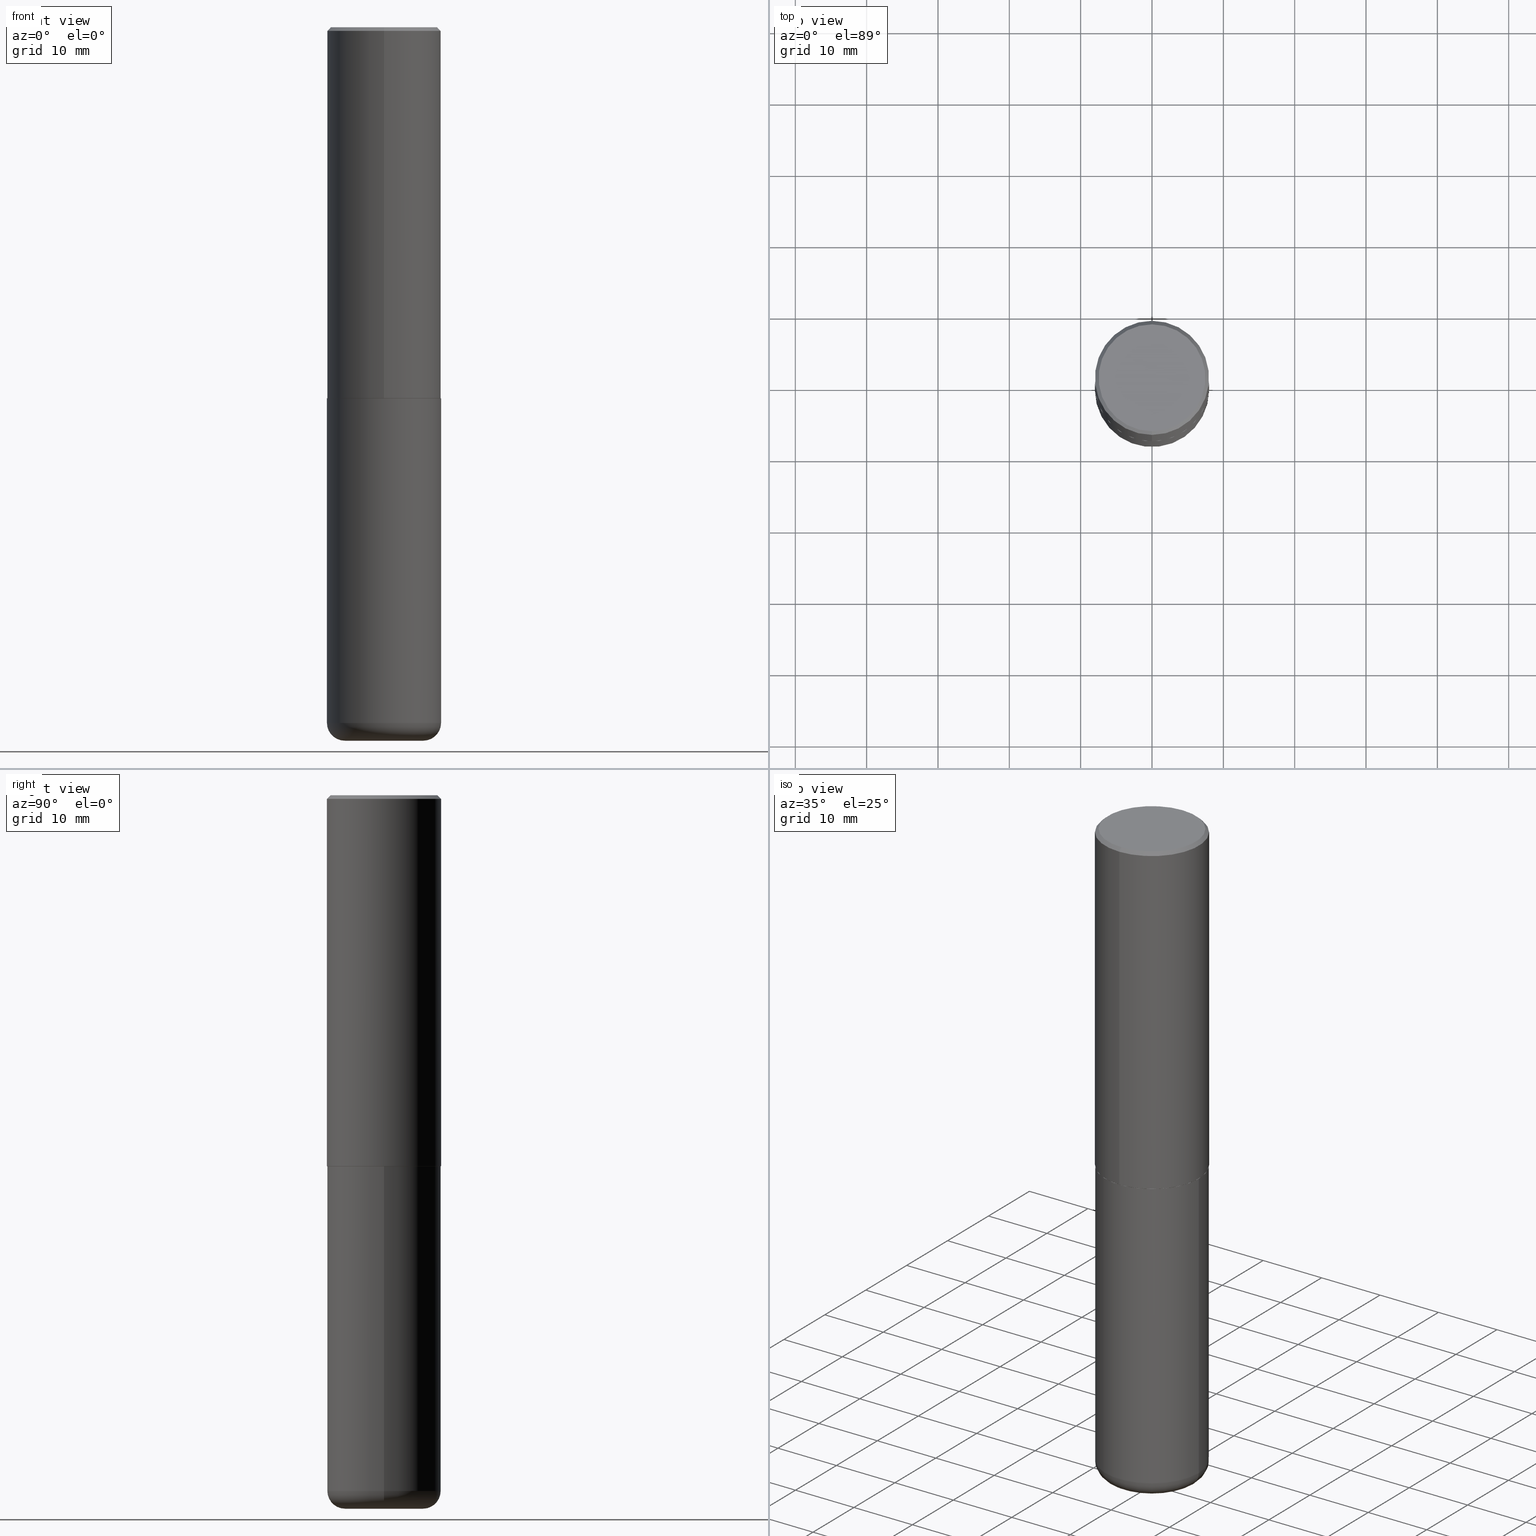
[diagram: canonical four-view strip — front | top / right | iso, engineering-drawing reading convention]
A machine part, canonical four-view strip (front | top / right | iso — engineering-drawing reading convention). The complete STEP part file that produces these views, byte-faithful:
ISO-10303-21;
HEADER;
FILE_DESCRIPTION (( 'STEP AP203' ),
    '1' );
FILE_NAME ('47573.STEP',
    '2024-03-06T13:08:48',
    ( '' ),
    ( '' ),
    'SwSTEP 2.0',
    'SolidWorks 2023',
    '' );
FILE_SCHEMA (( 'CONFIG_CONTROL_DESIGN' ));
ENDSEC;

DATA;
#1 = MECHANICAL_CONTEXT ( 'NONE', #303, 'mechanical' ) ;
#2 = EDGE_LOOP ( 'NONE', ( #238, #58, #114, #188 ) ) ;
#3 = AXIS2_PLACEMENT_3D ( 'NONE', #110, #141, #201 ) ;
#4 = AXIS2_PLACEMENT_3D ( 'NONE', #179, #240, #337 ) ;
#5 = APPLICATION_PROTOCOL_DEFINITION ( 'international standard', 'config_control_design', 1994, #124 ) ;
#6 = ORIENTED_EDGE ( 'NONE', *, *, #410, .F. ) ;
#7 = EDGE_LOOP ( 'NONE', ( #287, #76, #6, #310 ) ) ;
#8 = DIRECTION ( 'NONE',  ( 7.105427357601001859E-15, 1.000000000000000000, -3.491481338843145583E-15 ) ) ;
#9 = EDGE_CURVE ( 'NONE', #42, #95, #373, .T. ) ;
#10 = ORIENTED_EDGE ( 'NONE', *, *, #57, .F. ) ;
#11 = FACE_OUTER_BOUND ( 'NONE', #223, .T. ) ;
#12 = CIRCLE ( 'NONE', #306, 0.3139500000000000068 ) ;
#13 = ORIENTED_EDGE ( 'NONE', *, *, #249, .F. ) ;
#14 = CARTESIAN_POINT ( 'NONE',  ( 2.237854346276462412E-15, 0.3149499999999931799, -2.046200000000001129 ) ) ;
#15 = DIRECTION ( 'NONE',  ( -6.982962677686266711E-15, -1.000000000000000000, 3.480615376543096919E-15 ) ) ;
#16 = DIRECTION ( 'NONE',  ( 2.446965979212638438E-29, -3.489337301853966019E-15, -1.000000000000000000 ) ) ;
#17 = CARTESIAN_POINT ( 'NONE',  ( 5.009428752644114609E-29, -7.143371324355440401E-15, -2.047200000000000131 ) ) ;
#18 = AXIS2_PLACEMENT_3D ( 'NONE', #160, #116, #409 ) ;
#19 = DIRECTION ( 'NONE',  ( 1.000000000000000000, -6.982962677686266711E-15, 4.876176775795936353E-29 ) ) ;
#20 = DIRECTION ( 'NONE',  ( -2.445468806185136877E-29, 3.491481338843145188E-15, 1.000000000000000000 ) ) ;
#21 = DIRECTION ( 'NONE',  ( -6.982962677686266711E-15, -1.000000000000000000, 3.480615376543096919E-15 ) ) ;
#22 = EDGE_CURVE ( 'NONE', #218, #193, #12, .T. ) ;
#23 = PLANE ( 'NONE',  #307 ) ;
#24 = MANIFOLD_SOLID_BREP ( 'Body-Move/Copy2[2]', #106 ) ;
#25 = ORIENTED_EDGE ( 'NONE', *, *, #22, .F. ) ;
#26 = VERTEX_POINT ( 'NONE', #369 ) ;
#27 = ORIENTED_EDGE ( 'NONE', *, *, #152, .T. ) ;
#28 = AXIS2_PLACEMENT_3D ( 'NONE', #139, #172, #390 ) ;
#29 = EDGE_CURVE ( 'NONE', #202, #278, #131, .T. ) ;
#30 = DIRECTION ( 'NONE',  ( -6.982962677686264344E-15, -1.000000000000000000, 3.483117034309589160E-15 ) ) ;
#31 = ADVANCED_FACE ( 'NONE', ( #183 ), #308, .T. ) ;
#32 = PERSON_AND_ORGANIZATION ( #147, #123 ) ;
#33 = CARTESIAN_POINT ( 'NONE',  ( 9.627810689950881427E-29, -1.374596203102546184E-14, -3.936999999999999389 ) ) ;
#34 = CALENDAR_DATE ( 2024, 6, 3 ) ;
#35 = PERSON_AND_ORGANIZATION ( #147, #123 ) ;
#36 = AXIS2_PLACEMENT_3D ( 'NONE', #393, #242, #328 ) ;
#37 = CONICAL_SURFACE ( 'NONE', #211, 0.3139500000000000068, 0.7853981633975849475 ) ;
#38 = ADVANCED_FACE ( 'NONE', ( #120 ), #69, .T. ) ;
#39 = ORIENTED_EDGE ( 'NONE', *, *, #410, .T. ) ;
#40 = DIRECTION ( 'NONE',  ( -2.445468806185136877E-29, 3.491481338843145188E-15, 1.000000000000000000 ) ) ;
#41 = AXIS2_PLACEMENT_3D ( 'NONE', #125, #375, #19 ) ;
#42 = VERTEX_POINT ( 'NONE', #257 ) ;
#43 = LOCAL_TIME ( 8, 8, 48.00000000000000000, #318 ) ;
#44 = EDGE_LOOP ( 'NONE', ( #387, #284, #191, #398 ) ) ;
#45 = PERSON_AND_ORGANIZATION ( #147, #123 ) ;
#46 = DIRECTION ( 'NONE',  ( 2.438088387897960049E-29, -3.491481338843145188E-15, -1.000000000000000000 ) ) ;
#47 = UNCERTAINTY_MEASURE_WITH_UNIT (LENGTH_MEASURE( 1.000000000000000082E-05 ), #133, 'distance_accuracy_value', 'NONE');
#48 = APPROVAL_DATE_TIME ( #81, #234 ) ;
#49 = CARTESIAN_POINT ( 'NONE',  ( 4.893931958425293692E-31, -6.978674603707955407E-17, -0.02000000000000006981 ) ) ;
#50 = AXIS2_PLACEMENT_3D ( 'NONE', #145, #270, #105 ) ;
#51 = FACE_OUTER_BOUND ( 'NONE', #128, .T. ) ;
#52 = ORIENTED_EDGE ( 'NONE', *, *, #100, .T. ) ;
#53 = DIRECTION ( 'NONE',  ( 1.000000000000000000, -6.982962677686264344E-15, 0.000000000000000000 ) ) ;
#54 = DIRECTION ( 'NONE',  ( -2.446965979212638438E-29, 3.489337301853966019E-15, 1.000000000000000000 ) ) ;
#55 =( NAMED_UNIT ( * ) PLANE_ANGLE_UNIT ( ) SI_UNIT ( $, .RADIAN. ) );
#56 = AXIS2_PLACEMENT_3D ( 'NONE', #250, #340, #255 ) ;
#57 = EDGE_CURVE ( 'NONE', #227, #222, #252, .T. ) ;
#58 = ORIENTED_EDGE ( 'NONE', *, *, #281, .T. ) ;
#59 = CARTESIAN_POINT ( 'NONE',  ( -2.160713844398144151E-15, -0.3149500000000002298, -0.01999999999999896999 ) ) ;
#60 = ORIENTED_EDGE ( 'NONE', *, *, #361, .T. ) ;
#61 = DIRECTION ( 'NONE',  ( -2.446965979212638438E-29, 3.489337301853966019E-15, 1.000000000000000000 ) ) ;
#62 = AXIS2_PLACEMENT_3D ( 'NONE', #49, #16, #148 ) ;
#63 = CC_DESIGN_SECURITY_CLASSIFICATION ( #261, ( #198 ) ) ;
#64 = LINE ( 'NONE', #59, #194 ) ;
#65 = CC_DESIGN_PERSON_AND_ORGANIZATION_ASSIGNMENT ( #136, #228, ( #261 ) ) ;
#66 = APPROVAL_STATUS ( 'not_yet_approved' ) ;
#67 = CALENDAR_DATE ( 2024, 6, 3 ) ;
#68 = LENGTH_MEASURE_WITH_UNIT ( LENGTH_MEASURE( 0.02539999999999999897 ), #180 );
#69 = CONICAL_SURFACE ( 'NONE', #112, 0.3149500000000001743, 0.7853981633974467247 ) ;
#70 =( GEOMETRIC_REPRESENTATION_CONTEXT ( 3 ) GLOBAL_UNCERTAINTY_ASSIGNED_CONTEXT ( ( #47 ) ) GLOBAL_UNIT_ASSIGNED_CONTEXT ( ( #133, #55, #265 ) ) REPRESENTATION_CONTEXT ( 'NONE', 'WORKASPACE' ) );
#71 = PRODUCT_DEFINITION ( 'UNKNOWN', '', #198, #143 ) ;
#72 = DIRECTION ( 'NONE',  ( -6.982962677686265922E-15, -1.000000000000000000, 3.489337301853966019E-15 ) ) ;
#73 = DATE_AND_TIME ( #67, #78 ) ;
#74 = ORIENTED_EDGE ( 'NONE', *, *, #315, .T. ) ;
#75 = APPROVAL_STATUS ( 'not_yet_approved' ) ;
#76 = ORIENTED_EDGE ( 'NONE', *, *, #381, .T. ) ;
#77 = LINE ( 'NONE', #178, #98 ) ;
#78 = LOCAL_TIME ( 8, 8, 48.00000000000000000, #356 ) ;
#79 = CARTESIAN_POINT ( 'NONE',  ( 5.009428752644114609E-29, -7.143371324355440401E-15, -2.047200000000000131 ) ) ;
#80 = ORIENTED_EDGE ( 'NONE', *, *, #109, .T. ) ;
#81 = DATE_AND_TIME ( #301, #283 ) ;
#82 = CARTESIAN_POINT ( 'NONE',  ( 2.234301632597685968E-15, 0.3139499999999928459, -2.047200000000001463 ) ) ;
#83 = CARTESIAN_POINT ( 'NONE',  ( 5.009428752644114609E-29, -7.143371324355440401E-15, -2.047200000000000131 ) ) ;
#84 = VERTEX_POINT ( 'NONE', #134 ) ;
#85 = CARTESIAN_POINT ( 'NONE',  ( -0.2165500000000000203, -1.186371997299480179E-14, -3.838600000000000012 ) ) ;
#86 = APPROVAL ( #66, 'UNSPECIFIED' ) ;
#87 = TOROIDAL_SURFACE ( 'NONE', #236, 0.2165500000000000203, 0.09839999999999984870 ) ;
#88 = VECTOR ( 'NONE', #40, 39.37007874015748143 ) ;
#89 = DIRECTION ( 'NONE',  ( -6.982962677686266711E-15, -1.000000000000000000, 3.480615376543096919E-15 ) ) ;
#90 = DIRECTION ( 'NONE',  ( -2.446965979212638438E-29, 3.489337301853966019E-15, 1.000000000000000000 ) ) ;
#91 = DIRECTION ( 'NONE',  ( 5.024295867788748699E-15, 0.7071067811866466046, 0.7071067811864484298 ) ) ;
#92 = CIRCLE ( 'NONE', #3, 0.09839999999999986258 ) ;
#93 = ORIENTED_EDGE ( 'NONE', *, *, #29, .T. ) ;
#94 = CARTESIAN_POINT ( 'NONE',  ( 5.006363740022212801E-29, -7.147760596879689780E-15, -2.047200000000000575 ) ) ;
#95 = VERTEX_POINT ( 'NONE', #353 ) ;
#96 = FACE_OUTER_BOUND ( 'NONE', #345, .T. ) ;
#97 = ADVANCED_FACE ( 'NONE', ( #358 ), #357, .T. ) ;
#98 = VECTOR ( 'NONE', #206, 39.37007874015748143 ) ;
#99 = CONICAL_SURFACE ( 'NONE', #142, 0.3139500000000000068, 0.7853981633975849475 ) ;
#100 = EDGE_CURVE ( 'NONE', #174, #26, #295, .T. ) ;
#101 = ORIENTED_EDGE ( 'NONE', *, *, #220, .F. ) ;
#102 = ORIENTED_EDGE ( 'NONE', *, *, #29, .F. ) ;
#103 = PERSON_AND_ORGANIZATION_ROLE ( 'design_owner' ) ;
#104 = CC_DESIGN_DATE_AND_TIME_ASSIGNMENT ( #73, #288, ( #261 ) ) ;
#105 = DIRECTION ( 'NONE',  ( 1.000000000000000000, -6.982962677686266711E-15, 0.000000000000000000 ) ) ;
#106 = CLOSED_SHELL ( 'NONE', ( #298, #97, #251, #38, #320, #274, #200, #395 ) ) ;
#107 = CIRCLE ( 'NONE', #205, 0.3139500000000000068 ) ;
#108 = DIRECTION ( 'NONE',  ( -2.446965979212638438E-29, 3.489337301853966019E-15, 1.000000000000000000 ) ) ;
#109 = EDGE_CURVE ( 'NONE', #26, #174, #229, .T. ) ;
#110 = CARTESIAN_POINT ( 'NONE',  ( 0.2165500000000000203, -1.491456083513625814E-14, -3.838600000000000012 ) ) ;
#111 = CARTESIAN_POINT ( 'NONE',  ( -2.192301132659553370E-15, -0.3139500000000071678, -2.047199999999999243 ) ) ;
#112 = AXIS2_PLACEMENT_3D ( 'NONE', #155, #215, #258 ) ;
#113 = EDGE_CURVE ( 'NONE', #26, #277, #137, .T. ) ;
#114 = ORIENTED_EDGE ( 'NONE', *, *, #286, .F. ) ;
#115 = VERTEX_POINT ( 'NONE', #241 ) ;
#116 = DIRECTION ( 'NONE',  ( -2.445468806185136597E-29, 3.491481338843145583E-15, 1.000000000000000000 ) ) ;
#117 = ADVANCED_FACE ( 'NONE', ( #51 ), #87, .T. ) ;
#118 = LINE ( 'NONE', #248, #237 ) ;
#119 = FACE_OUTER_BOUND ( 'NONE', #207, .T. ) ;
#120 = FACE_OUTER_BOUND ( 'NONE', #263, .T. ) ;
#121 = DIRECTION ( 'NONE',  ( 6.982962677686265922E-15, 1.000000000000000000, -3.489337301853966019E-15 ) ) ;
#122 = AXIS2_PLACEMENT_3D ( 'NONE', #33, #196, #396 ) ;
#123 = ORGANIZATION ( 'UNSPECIFIED', 'UNSPECIFIED', '' ) ;
#124 = APPLICATION_CONTEXT ( 'configuration controlled 3d designs of mechanical parts and assemblies' ) ;
#125 = CARTESIAN_POINT ( 'NONE',  ( 0.000000000000000000, 0.000000000000000000, 0.000000000000000000 ) ) ;
#126 = ORIENTED_EDGE ( 'NONE', *, *, #286, .T. ) ;
#127 = DIRECTION ( 'NONE',  ( -6.982962677686265922E-15, -1.000000000000000000, 3.489337301853966019E-15 ) ) ;
#128 = EDGE_LOOP ( 'NONE', ( #52, #408, #262, #13 ) ) ;
#129 = CARTESIAN_POINT ( 'NONE',  ( -0.3149500000000000077, 2.237854346276435590E-15, -1.549218606675782676E-29 ) ) ;
#130 = EDGE_LOOP ( 'NONE', ( #392, #80, #305, #365 ) ) ;
#131 = CIRCLE ( 'NONE', #360, 0.2949500000000003230 ) ;
#132 = CC_DESIGN_APPROVAL ( #234, ( #261 ) ) ;
#133 =( CONVERSION_BASED_UNIT ( 'INCH', #68 ) LENGTH_UNIT ( ) NAMED_UNIT ( #276 ) );
#134 = CARTESIAN_POINT ( 'NONE',  ( -0.3149500000000000077, -8.037226085805059139E-15, -2.047200000000000575 ) ) ;
#135 = EDGE_CURVE ( 'NONE', #202, #42, #302, .T. ) ;
#136 = PERSON_AND_ORGANIZATION ( #147, #123 ) ;
#137 = CIRCLE ( 'NONE', #282, 0.09839999999999986258 ) ;
#138 = ORIENTED_EDGE ( 'NONE', *, *, #57, .T. ) ;
#139 = CARTESIAN_POINT ( 'NONE',  ( 9.387176559422264284E-29, -1.340240026728329889E-14, -3.838600000000000012 ) ) ;
#140 = CARTESIAN_POINT ( 'NONE',  ( 5.009428752644115170E-29, -7.143371324355441979E-15, -2.047200000000000575 ) ) ;
#141 = DIRECTION ( 'NONE',  ( -6.982962677686266711E-15, -1.000000000000000000, 3.491481338843145583E-15 ) ) ;
#142 = AXIS2_PLACEMENT_3D ( 'NONE', #79, #54, #15 ) ;
#143 = DESIGN_CONTEXT ( 'detailed design', #124, 'design' ) ;
#144 = EDGE_CURVE ( 'NONE', #115, #277, #394, .T. ) ;
#145 = CARTESIAN_POINT ( 'NONE',  ( 5.006363740022212801E-29, -7.147760596879689780E-15, -2.047200000000000575 ) ) ;
#146 = PRODUCT_RELATED_PRODUCT_CATEGORY ( 'detail', '', ( #150 ) ) ;
#147 = PERSON ( 'UNSPECIFIED', 'UNSPECIFIED', 'UNSPECIFIED', ('UNSPECIFIED'), ('UNSPECIFIED'), ('UNSPECIFIED') ) ;
#148 = DIRECTION ( 'NONE',  ( 6.982962677686264344E-15, 1.000000000000000000, -3.483117034309589160E-15 ) ) ;
#149 = EDGE_CURVE ( 'NONE', #227, #42, #359, .T. ) ;
#150 = PRODUCT ( '47573', '47573', '', ( #1 ) ) ;
#151 = DIRECTION ( 'NONE',  ( 1.000000000000000000, -6.982962677686266711E-15, 4.883557194083112901E-29 ) ) ;
#152 = EDGE_CURVE ( 'NONE', #222, #95, #77, .T. ) ;
#153 = DIRECTION ( 'NONE',  ( -2.446965979212638438E-29, 3.489337301853966019E-15, 1.000000000000000000 ) ) ;
#154 = AXIS2_PLACEMENT_3D ( 'NONE', #94, #380, #372 ) ;
#155 = CARTESIAN_POINT ( 'NONE',  ( 4.893931958425293692E-31, -6.978674603707955407E-17, -0.02000000000000006981 ) ) ;
#156 = CALENDAR_DATE ( 2024, 6, 3 ) ;
#157 = CARTESIAN_POINT ( 'NONE',  ( 4.506783297642337076E-45, -6.426606338391306016E-31, -1.841784207842761497E-16 ) ) ;
#158 = CARTESIAN_POINT ( 'NONE',  ( 2.059624841783566430E-15, 0.2949500000000003230, -1.121269247573966471E-15 ) ) ;
#159 = LOCAL_TIME ( 8, 8, 48.00000000000000000, #285 ) ;
#160 = CARTESIAN_POINT ( 'NONE',  ( 0.000000000000000000, 0.000000000000000000, 0.000000000000000000 ) ) ;
#161 = DIRECTION ( 'NONE',  ( -6.982962677686265922E-15, -1.000000000000000000, 3.469564049740289220E-15 ) ) ;
#162 = CARTESIAN_POINT ( 'NONE',  ( 0.000000000000000000, 0.000000000000000000, 0.000000000000000000 ) ) ;
#163 = FACE_OUTER_BOUND ( 'NONE', #312, .T. ) ;
#164 = PERSON_AND_ORGANIZATION_ROLE ( 'creator' ) ;
#165 = ORIENTED_EDGE ( 'NONE', *, *, #362, .F. ) ;
#166 = AXIS2_PLACEMENT_3D ( 'NONE', #346, #185, #30 ) ;
#167 = CARTESIAN_POINT ( 'NONE',  ( 9.387176559422264284E-29, -1.340240026728329889E-14, -3.838600000000000012 ) ) ;
#168 = ORIENTED_EDGE ( 'NONE', *, *, #149, .T. ) ;
#169 = APPROVAL_ROLE ( '' ) ;
#170 = EDGE_LOOP ( 'NONE', ( #39, #168, #101, #232 ) ) ;
#171 = APPROVAL_STATUS ( 'not_yet_approved' ) ;
#172 = DIRECTION ( 'NONE',  ( -2.445468806185136597E-29, 3.491481338843145583E-15, 1.000000000000000000 ) ) ;
#173 = ORIENTED_EDGE ( 'NONE', *, *, #391, .T. ) ;
#174 = VERTEX_POINT ( 'NONE', #239 ) ;
#175 = SHAPE_DEFINITION_REPRESENTATION ( #291, #397 ) ;
#176 = DIRECTION ( 'NONE',  ( -2.446965979212638158E-29, 3.489337301853966019E-15, 1.000000000000000000 ) ) ;
#177 = CC_DESIGN_APPROVAL ( #377, ( #71 ) ) ;
#178 = CARTESIAN_POINT ( 'NONE',  ( -2.199284095337291449E-15, -0.3149500000000002853, 1.098966783218907654E-15 ) ) ;
#179 = CARTESIAN_POINT ( 'NONE',  ( 9.387176559422264284E-29, -1.340240026728329889E-14, -3.838600000000000012 ) ) ;
#180 =( LENGTH_UNIT ( ) NAMED_UNIT ( * ) SI_UNIT ( $, .METRE. ) );
#181 = CARTESIAN_POINT ( 'NONE',  ( 9.387176559422264284E-29, -1.340240026728329889E-14, -3.838600000000000012 ) ) ;
#182 = DIRECTION ( 'NONE',  ( -2.446965979212638438E-29, 3.489337301853966019E-15, 1.000000000000000000 ) ) ;
#183 = FACE_OUTER_BOUND ( 'NONE', #2, .T. ) ;
#184 = VECTOR ( 'NONE', #403, 39.37007874015748143 ) ;
#185 = DIRECTION ( 'NONE',  ( -2.446965979212638438E-29, 3.489337301853966019E-15, 1.000000000000000000 ) ) ;
#186 = ADVANCED_FACE ( 'NONE', ( #335 ), #367, .F. ) ;
#187 = CARTESIAN_POINT ( 'NONE',  ( 5.006981786664901703E-29, -7.139881987053586380E-15, -2.046200000000000241 ) ) ;
#188 = ORIENTED_EDGE ( 'NONE', *, *, #391, .F. ) ;
#189 = CYLINDRICAL_SURFACE ( 'NONE', #18, 0.3149500000000000077 ) ;
#190 = DATE_AND_TIME ( #156, #355 ) ;
#191 = ORIENTED_EDGE ( 'NONE', *, *, #220, .T. ) ;
#192 = APPROVAL_ROLE ( '' ) ;
#193 = VERTEX_POINT ( 'NONE', #111 ) ;
#194 = VECTOR ( 'NONE', #401, 39.37007874015748854 ) ;
#195 = DIRECTION ( 'NONE',  ( 1.000000000000000000, 0.000000000000000000, 0.000000000000000000 ) ) ;
#196 = DIRECTION ( 'NONE',  ( -2.445468806185136597E-29, 3.491481338843145583E-15, 1.000000000000000000 ) ) ;
#197 = APPROVAL_DATE_TIME ( #199, #86 ) ;
#198 = PRODUCT_DEFINITION_FORMATION_WITH_SPECIFIED_SOURCE ( 'ANY', '', #150, .NOT_KNOWN. ) ;
#199 = DATE_AND_TIME ( #34, #43 ) ;
#200 = ADVANCED_FACE ( 'NONE', ( #11 ), #336, .F. ) ;
#201 = DIRECTION ( 'NONE',  ( 1.000000000000000000, -6.982962677686271444E-15, 0.000000000000000000 ) ) ;
#202 = VERTEX_POINT ( 'NONE', #364 ) ;
#203 = AXIS2_PLACEMENT_3D ( 'NONE', #140, #299, #269 ) ;
#204 = CARTESIAN_POINT ( 'NONE',  ( 2.237854346276437168E-15, 0.3149500000000002853, -1.098966783218907654E-15 ) ) ;
#205 = AXIS2_PLACEMENT_3D ( 'NONE', #83, #108, #89 ) ;
#206 = DIRECTION ( 'NONE',  ( -2.446965979212638158E-29, 3.489337301853966019E-15, 1.000000000000000000 ) ) ;
#207 = EDGE_LOOP ( 'NONE', ( #93, #74 ) ) ;
#208 = LINE ( 'NONE', #344, #321 ) ;
#209 = ORIENTED_EDGE ( 'NONE', *, *, #9, .T. ) ;
#210 = AXIS2_PLACEMENT_3D ( 'NONE', #327, #46, #293 ) ;
#211 = AXIS2_PLACEMENT_3D ( 'NONE', #17, #153, #400 ) ;
#212 = LINE ( 'NONE', #343, #184 ) ;
#213 = CC_DESIGN_PERSON_AND_ORGANIZATION_ASSIGNMENT ( #35, #103, ( #150 ) ) ;
#214 = ORIENTED_EDGE ( 'NONE', *, *, #22, .T. ) ;
#215 = DIRECTION ( 'NONE',  ( 2.446965979212638438E-29, -3.489337301853966019E-15, -1.000000000000000000 ) ) ;
#216 = APPROVAL_DATE_TIME ( #190, #377 ) ;
#217 = FACE_OUTER_BOUND ( 'NONE', #402, .T. ) ;
#218 = VERTEX_POINT ( 'NONE', #82 ) ;
#219 = AXIS2_PLACEMENT_3D ( 'NONE', #378, #61, #161 ) ;
#220 = EDGE_CURVE ( 'NONE', #95, #42, #325, .T. ) ;
#221 = APPROVAL_PERSON_ORGANIZATION ( #352, #86, #192 ) ;
#222 = VERTEX_POINT ( 'NONE', #297 ) ;
#223 = EDGE_LOOP ( 'NONE', ( #371, #25 ) ) ;
#224 = APPLICATION_PROTOCOL_DEFINITION ( 'international standard', 'config_control_design', 1994, #303 ) ;
#225 = CARTESIAN_POINT ( 'NONE',  ( -2.092108864420429609E-15, -0.2949500000000003230, 8.450016163975523199E-16 ) ) ;
#226 = PERSON_AND_ORGANIZATION ( #147, #123 ) ;
#227 = VERTEX_POINT ( 'NONE', #14 ) ;
#228 = PERSON_AND_ORGANIZATION_ROLE ( 'classification_officer' ) ;
#229 = CIRCLE ( 'NONE', #279, 0.2165500000000000203 ) ;
#230 = APPROVAL_PERSON_ORGANIZATION ( #267, #234, #169 ) ;
#231 = CC_DESIGN_DATE_AND_TIME_ASSIGNMENT ( #260, #383, ( #71 ) ) ;
#232 = ORIENTED_EDGE ( 'NONE', *, *, #152, .F. ) ;
#233 = LINE ( 'NONE', #129, #88 ) ;
#234 = APPROVAL ( #75, 'UNSPECIFIED' ) ;
#235 = CARTESIAN_POINT ( 'NONE',  ( 9.627810689950881427E-29, -1.374596203102546184E-14, -3.936999999999999389 ) ) ;
#236 = AXIS2_PLACEMENT_3D ( 'NONE', #181, #275, #273 ) ;
#237 = VECTOR ( 'NONE', #91, 39.37007874015748143 ) ;
#238 = ORIENTED_EDGE ( 'NONE', *, *, #144, .T. ) ;
#239 = CARTESIAN_POINT ( 'NONE',  ( 0.2165500000000000203, -1.525812259887842266E-14, -3.936999999999999389 ) ) ;
#240 = DIRECTION ( 'NONE',  ( -2.445468806185136597E-29, 3.491481338843145583E-15, 1.000000000000000000 ) ) ;
#241 = CARTESIAN_POINT ( 'NONE',  ( 0.3149499999999999522, -1.560168436262058718E-14, -3.838600000000000012 ) ) ;
#242 = DIRECTION ( 'NONE',  ( -2.446965979212638438E-29, 3.489337301853966019E-15, 1.000000000000000000 ) ) ;
#243 = CARTESIAN_POINT ( 'NONE',  ( 4.506783297642337076E-45, -6.426606338391306016E-31, -1.841784207842761497E-16 ) ) ;
#244 = CONICAL_SURFACE ( 'NONE', #62, 0.3149500000000001743, 0.7853981633974467247 ) ;
#245 = DIRECTION ( 'NONE',  ( -2.445468806185136597E-29, 3.491481338843145583E-15, 1.000000000000000000 ) ) ;
#246 = AXIS2_PLACEMENT_3D ( 'NONE', #162, #317, #127 ) ;
#247 = PERSON_AND_ORGANIZATION ( #147, #123 ) ;
#248 = CARTESIAN_POINT ( 'NONE',  ( 2.230748918918884280E-15, 0.3139499999999928459, -2.047200000000001463 ) ) ;
#249 = EDGE_CURVE ( 'NONE', #174, #115, #92, .T. ) ;
#250 = CARTESIAN_POINT ( 'NONE',  ( 1.656420021577714822E-28, -3.812657435268170484E-15, -3.937000000000000277 ) ) ;
#251 = ADVANCED_FACE ( 'NONE', ( #331 ), #244, .T. ) ;
#252 = CIRCLE ( 'NONE', #219, 0.3149500000000003408 ) ;
#253 = DIRECTION ( 'NONE',  ( -2.446965979212638438E-29, 3.489337301853966019E-15, 1.000000000000000000 ) ) ;
#254 = CIRCLE ( 'NONE', #154, 0.3149500000000000077 ) ;
#255 = DIRECTION ( 'NONE',  ( -1.000000000000000000, 6.982962677686265922E-15, -4.876176775795935793E-29 ) ) ;
#256 = FACE_OUTER_BOUND ( 'NONE', #333, .T. ) ;
#257 = CARTESIAN_POINT ( 'NONE',  ( 2.199284095337290660E-15, 0.3149500000000000632, -0.02000000000000116615 ) ) ;
#258 = DIRECTION ( 'NONE',  ( 6.982962677686264344E-15, 1.000000000000000000, -3.483117034309589160E-15 ) ) ;
#259 = DIRECTION ( 'NONE',  ( -2.446965979212638438E-29, 3.489337301853966019E-15, 1.000000000000000000 ) ) ;
#260 = DATE_AND_TIME ( #411, #159 ) ;
#261 = SECURITY_CLASSIFICATION ( '', '', #384 ) ;
#262 = ORIENTED_EDGE ( 'NONE', *, *, #144, .F. ) ;
#263 = EDGE_LOOP ( 'NONE', ( #165, #102, #300, #209 ) ) ;
#264 = CC_DESIGN_PERSON_AND_ORGANIZATION_ASSIGNMENT ( #32, #164, ( #71 ) ) ;
#265 =( NAMED_UNIT ( * ) SI_UNIT ( $, .STERADIAN. ) SOLID_ANGLE_UNIT ( ) );
#266 = CLOSED_SHELL ( 'NONE', ( #31, #117, #186, #268, #405, #338 ) ) ;
#267 = PERSON_AND_ORGANIZATION ( #147, #123 ) ;
#268 = ADVANCED_FACE ( 'NONE', ( #256 ), #189, .T. ) ;
#269 = DIRECTION ( 'NONE',  ( -6.982962677686265922E-15, -1.000000000000000000, 3.489337301853966019E-15 ) ) ;
#270 = DIRECTION ( 'NONE',  ( -2.445468806185136597E-29, 3.491481338843145583E-15, 1.000000000000000000 ) ) ;
#271 = CIRCLE ( 'NONE', #341, 0.2949500000000003230 ) ;
#272 = DIRECTION ( 'NONE',  ( -1.000000000000000000, 7.105427357601009747E-15, 0.000000000000000000 ) ) ;
#273 = DIRECTION ( 'NONE',  ( 1.000000000000000000, -6.982962677686266711E-15, 4.883557194083112901E-29 ) ) ;
#274 = ADVANCED_FACE ( 'NONE', ( #96 ), #37, .T. ) ;
#275 = DIRECTION ( 'NONE',  ( -2.445468806185136597E-29, 3.491481338843145583E-15, 1.000000000000000000 ) ) ;
#276 = DIMENSIONAL_EXPONENTS ( 1.000000000000000000, 0.000000000000000000, 0.000000000000000000, 0.000000000000000000, 0.000000000000000000, 0.000000000000000000, 0.000000000000000000 ) ;
#277 = VERTEX_POINT ( 'NONE', #389 ) ;
#278 = VERTEX_POINT ( 'NONE', #225 ) ;
#279 = AXIS2_PLACEMENT_3D ( 'NONE', #235, #245, #53 ) ;
#280 = CIRCLE ( 'NONE', #4, 0.3149500000000000077 ) ;
#281 = EDGE_CURVE ( 'NONE', #277, #84, #233, .T. ) ;
#282 = AXIS2_PLACEMENT_3D ( 'NONE', #85, #8, #272 ) ;
#283 = LOCAL_TIME ( 8, 8, 48.00000000000000000, #363 ) ;
#284 = ORIENTED_EDGE ( 'NONE', *, *, #362, .T. ) ;
#285 = COORDINATED_UNIVERSAL_TIME_OFFSET ( 5, 0, .BEHIND. ) ;
#286 = EDGE_CURVE ( 'NONE', #385, #84, #326, .T. ) ;
#287 = ORIENTED_EDGE ( 'NONE', *, *, #290, .T. ) ;
#288 = DATE_TIME_ROLE ( 'classification_date' ) ;
#289 = TOROIDAL_SURFACE ( 'NONE', #382, 0.2165500000000000203, 0.09839999999999984870 ) ;
#290 = EDGE_CURVE ( 'NONE', #193, #218, #107, .T. ) ;
#291 = PRODUCT_DEFINITION_SHAPE ( 'NONE', 'NONE',  #71 ) ;
#292 = MANIFOLD_SOLID_BREP ( 'Body-Move/Copy2[1]', #266 ) ;
#293 = DIRECTION ( 'NONE',  ( -1.000000000000000000, 6.982962677686265922E-15, -4.876176775795935793E-29 ) ) ;
#294 = EDGE_CURVE ( 'NONE', #277, #115, #280, .T. ) ;
#295 = CIRCLE ( 'NONE', #122, 0.2165500000000000203 ) ;
#296 = AXIS2_PLACEMENT_3D ( 'NONE', #316, #415, #195 ) ;
#297 = CARTESIAN_POINT ( 'NONE',  ( -2.199284095337241750E-15, -0.3149500000000075017, -2.046199999999998909 ) ) ;
#298 = ADVANCED_FACE ( 'NONE', ( #332 ), #99, .T. ) ;
#299 = DIRECTION ( 'NONE',  ( -2.446965979212638158E-29, 3.489337301853966019E-15, 1.000000000000000000 ) ) ;
#300 = ORIENTED_EDGE ( 'NONE', *, *, #135, .T. ) ;
#301 = CALENDAR_DATE ( 2024, 6, 3 ) ;
#302 = LINE ( 'NONE', #399, #388 ) ;
#303 = APPLICATION_CONTEXT ( 'configuration controlled 3d designs of mechanical parts and assemblies' ) ;
#304 = DIRECTION ( 'NONE',  ( -6.982962677686265922E-15, -1.000000000000000000, 3.489337301853966019E-15 ) ) ;
#305 = ORIENTED_EDGE ( 'NONE', *, *, #249, .T. ) ;
#306 = AXIS2_PLACEMENT_3D ( 'NONE', #314, #253, #21 ) ;
#307 = AXIS2_PLACEMENT_3D ( 'NONE', #158, #404, #121 ) ;
#308 = CYLINDRICAL_SURFACE ( 'NONE', #41, 0.3149500000000000077 ) ;
#309 = PLANE ( 'NONE',  #56 ) ;
#310 = ORIENTED_EDGE ( 'NONE', *, *, #324, .F. ) ;
#311 = DIRECTION ( 'NONE',  ( -2.446965979212638438E-29, 3.489337301853966019E-15, 1.000000000000000000 ) ) ;
#312 = EDGE_LOOP ( 'NONE', ( #329, #330 ) ) ;
#313 = AXIS2_PLACEMENT_3D ( 'NONE', #354, #259, #72 ) ;
#314 = CARTESIAN_POINT ( 'NONE',  ( 5.009428752644114609E-29, -7.143371324355440401E-15, -2.047200000000000131 ) ) ;
#315 = EDGE_CURVE ( 'NONE', #278, #202, #271, .T. ) ;
#316 = CARTESIAN_POINT ( 'NONE',  ( 0.000000000000000000, 0.000000000000000000, 0.000000000000000000 ) ) ;
#317 = DIRECTION ( 'NONE',  ( -2.446965979212638438E-29, 3.489337301853966019E-15, 1.000000000000000000 ) ) ;
#318 = COORDINATED_UNIVERSAL_TIME_OFFSET ( 5, 0, .BEHIND. ) ;
#319 = PERSON_AND_ORGANIZATION_ROLE ( 'design_supplier' ) ;
#320 = ADVANCED_FACE ( 'NONE', ( #217 ), #350, .T. ) ;
#321 = VECTOR ( 'NONE', #20, 39.37007874015748143 ) ;
#322 = EDGE_LOOP ( 'NONE', ( #126, #60 ) ) ;
#323 = DIRECTION ( 'NONE',  ( -2.445468806185136597E-29, 3.491481338843145583E-15, 1.000000000000000000 ) ) ;
#324 = EDGE_CURVE ( 'NONE', #193, #222, #212, .T. ) ;
#325 = CIRCLE ( 'NONE', #36, 0.3149500000000001743 ) ;
#326 = CIRCLE ( 'NONE', #50, 0.3149500000000000077 ) ;
#327 = CARTESIAN_POINT ( 'NONE',  ( 5.006363740022212801E-29, -7.147760596879689780E-15, -2.047200000000000575 ) ) ;
#328 = DIRECTION ( 'NONE',  ( -6.982962677686264344E-15, -1.000000000000000000, 3.483117034309589160E-15 ) ) ;
#329 = ORIENTED_EDGE ( 'NONE', *, *, #100, .F. ) ;
#330 = ORIENTED_EDGE ( 'NONE', *, *, #109, .F. ) ;
#331 = FACE_OUTER_BOUND ( 'NONE', #44, .T. ) ;
#332 = FACE_OUTER_BOUND ( 'NONE', #7, .T. ) ;
#333 = EDGE_LOOP ( 'NONE', ( #379, #416, #173, #412 ) ) ;
#334 = VECTOR ( 'NONE', #176, 39.37007874015748143 ) ;
#335 = FACE_OUTER_BOUND ( 'NONE', #322, .T. ) ;
#336 = PLANE ( 'NONE',  #203 ) ;
#337 = DIRECTION ( 'NONE',  ( 1.000000000000000000, -6.982962677686263555E-15, 0.000000000000000000 ) ) ;
#338 = ADVANCED_FACE ( 'NONE', ( #163 ), #309, .T. ) ;
#339 = DIRECTION ( 'NONE',  ( -6.982962677686265922E-15, -1.000000000000000000, 3.489337301853966019E-15 ) ) ;
#340 = DIRECTION ( 'NONE',  ( 2.438088387897960049E-29, -3.491481338843145188E-15, -1.000000000000000000 ) ) ;
#341 = AXIS2_PLACEMENT_3D ( 'NONE', #243, #182, #304 ) ;
#342 = ORIENTED_EDGE ( 'NONE', *, *, #324, .T. ) ;
#343 = CARTESIAN_POINT ( 'NONE',  ( -2.192301132659553370E-15, -0.3139500000000071678, -2.047199999999999243 ) ) ;
#344 = CARTESIAN_POINT ( 'NONE',  ( 0.3149500000000000077, -2.199284095337289871E-15, 1.535751875536930130E-29 ) ) ;
#345 = EDGE_LOOP ( 'NONE', ( #414, #214, #342, #10 ) ) ;
#346 = CARTESIAN_POINT ( 'NONE',  ( 4.893931958425293692E-31, -6.978674603707955407E-17, -0.02000000000000006981 ) ) ;
#347 = CC_DESIGN_PERSON_AND_ORGANIZATION_ASSIGNMENT ( #226, #319, ( #198 ) ) ;
#348 = APPROVAL_ROLE ( '' ) ;
#349 = APPROVAL_PERSON_ORGANIZATION ( #247, #377, #348 ) ;
#350 = CYLINDRICAL_SURFACE ( 'NONE', #246, 0.3149500000000002853 ) ;
#351 = COORDINATED_UNIVERSAL_TIME_OFFSET ( 5, 0, .BEHIND. ) ;
#352 = PERSON_AND_ORGANIZATION ( #147, #123 ) ;
#353 = CARTESIAN_POINT ( 'NONE',  ( -2.160713844398144151E-15, -0.3149500000000002298, -0.01999999999999896999 ) ) ;
#354 = CARTESIAN_POINT ( 'NONE',  ( 0.000000000000000000, 0.000000000000000000, 0.000000000000000000 ) ) ;
#355 = LOCAL_TIME ( 8, 8, 48.00000000000000000, #351 ) ;
#356 = COORDINATED_UNIVERSAL_TIME_OFFSET ( 5, 0, .BEHIND. ) ;
#357 = CYLINDRICAL_SURFACE ( 'NONE', #313, 0.3149500000000002853 ) ;
#358 = FACE_OUTER_BOUND ( 'NONE', #170, .T. ) ;
#359 = LINE ( 'NONE', #204, #334 ) ;
#360 = AXIS2_PLACEMENT_3D ( 'NONE', #157, #90, #339 ) ;
#361 = EDGE_CURVE ( 'NONE', #84, #385, #254, .T. ) ;
#362 = EDGE_CURVE ( 'NONE', #278, #95, #64, .T. ) ;
#363 = COORDINATED_UNIVERSAL_TIME_OFFSET ( 5, 0, .BEHIND. ) ;
#364 = CARTESIAN_POINT ( 'NONE',  ( 2.129454468560428545E-15, 0.2949500000000003230, -1.213358457966104521E-15 ) ) ;
#365 = ORIENTED_EDGE ( 'NONE', *, *, #294, .F. ) ;
#366 = DIRECTION ( 'NONE',  ( 4.937700262164540154E-15, 0.7071067811865440200, -0.7071067811865511255 ) ) ;
#367 = PLANE ( 'NONE',  #210 ) ;
#368 = ORIENTED_EDGE ( 'NONE', *, *, #149, .F. ) ;
#369 = CARTESIAN_POINT ( 'NONE',  ( -0.2165500000000000203, -1.168591382887191382E-14, -3.936999999999999389 ) ) ;
#370 = CARTESIAN_POINT ( 'NONE',  ( 0.3149500000000000077, -9.347044692216979650E-15, -2.047200000000000575 ) ) ;
#371 = ORIENTED_EDGE ( 'NONE', *, *, #290, .F. ) ;
#372 = DIRECTION ( 'NONE',  ( 1.000000000000000000, -6.982962677686266711E-15, 0.000000000000000000 ) ) ;
#373 = CIRCLE ( 'NONE', #166, 0.3149500000000001743 ) ;
#374 = AXIS2_PLACEMENT_3D ( 'NONE', #187, #311, #406 ) ;
#375 = DIRECTION ( 'NONE',  ( -2.445468806185136597E-29, 3.491481338843145583E-15, 1.000000000000000000 ) ) ;
#376 = FACE_OUTER_BOUND ( 'NONE', #130, .T. ) ;
#377 = APPROVAL ( #171, 'UNSPECIFIED' ) ;
#378 = CARTESIAN_POINT ( 'NONE',  ( 5.006981786664901703E-29, -7.139881987053586380E-15, -2.046200000000000241 ) ) ;
#379 = ORIENTED_EDGE ( 'NONE', *, *, #281, .F. ) ;
#380 = DIRECTION ( 'NONE',  ( -2.445468806185136597E-29, 3.491481338843145583E-15, 1.000000000000000000 ) ) ;
#381 = EDGE_CURVE ( 'NONE', #218, #227, #118, .T. ) ;
#382 = AXIS2_PLACEMENT_3D ( 'NONE', #167, #323, #151 ) ;
#383 = DATE_TIME_ROLE ( 'creation_date' ) ;
#384 = SECURITY_CLASSIFICATION_LEVEL ( 'unclassified' ) ;
#385 = VERTEX_POINT ( 'NONE', #370 ) ;
#386 = ORIENTED_EDGE ( 'NONE', *, *, #9, .F. ) ;
#387 = ORIENTED_EDGE ( 'NONE', *, *, #315, .F. ) ;
#388 = VECTOR ( 'NONE', #366, 39.37007874015748143 ) ;
#389 = CARTESIAN_POINT ( 'NONE',  ( -0.3149499999999999522, -1.116454592100686291E-14, -3.838600000000000012 ) ) ;
#390 = DIRECTION ( 'NONE',  ( 1.000000000000000000, -6.982962677686263555E-15, 0.000000000000000000 ) ) ;
#391 = EDGE_CURVE ( 'NONE', #115, #385, #208, .T. ) ;
#392 = ORIENTED_EDGE ( 'NONE', *, *, #113, .F. ) ;
#393 = CARTESIAN_POINT ( 'NONE',  ( 4.893931958425293692E-31, -6.978674603707955407E-17, -0.02000000000000006981 ) ) ;
#394 = CIRCLE ( 'NONE', #28, 0.3149500000000000077 ) ;
#395 = ADVANCED_FACE ( 'NONE', ( #119 ), #23, .F. ) ;
#396 = DIRECTION ( 'NONE',  ( 1.000000000000000000, -6.982962677686264344E-15, 0.000000000000000000 ) ) ;
#397 = ADVANCED_BREP_SHAPE_REPRESENTATION ( '47573', ( #292, #24, #296 ), #70 ) ;
#398 = ORIENTED_EDGE ( 'NONE', *, *, #135, .F. ) ;
#399 = CARTESIAN_POINT ( 'NONE',  ( 2.199284095337290660E-15, 0.3149500000000000632, -0.02000000000000116615 ) ) ;
#400 = DIRECTION ( 'NONE',  ( -6.982962677686266711E-15, -1.000000000000000000, 3.480615376543096919E-15 ) ) ;
#401 = DIRECTION ( 'NONE',  ( -4.851104656540955597E-15, -0.7071067811865487940, -0.7071067811865461294 ) ) ;
#402 = EDGE_LOOP ( 'NONE', ( #368, #138, #27, #386 ) ) ;
#403 = DIRECTION ( 'NONE',  ( -4.937700262165222518E-15, -0.7071067811866417196, 0.7071067811864533148 ) ) ;
#404 = DIRECTION ( 'NONE',  ( 2.446965979212638158E-29, -3.489337301853966019E-15, -1.000000000000000000 ) ) ;
#405 = ADVANCED_FACE ( 'NONE', ( #376 ), #289, .T. ) ;
#406 = DIRECTION ( 'NONE',  ( -6.982962677686265922E-15, -1.000000000000000000, 3.469564049740289220E-15 ) ) ;
#407 = CC_DESIGN_APPROVAL ( #86, ( #198 ) ) ;
#408 = ORIENTED_EDGE ( 'NONE', *, *, #113, .T. ) ;
#409 = DIRECTION ( 'NONE',  ( 1.000000000000000000, -6.982962677686266711E-15, 4.876176775795936353E-29 ) ) ;
#410 = EDGE_CURVE ( 'NONE', #222, #227, #413, .T. ) ;
#411 = CALENDAR_DATE ( 2024, 6, 3 ) ;
#412 = ORIENTED_EDGE ( 'NONE', *, *, #361, .F. ) ;
#413 = CIRCLE ( 'NONE', #374, 0.3149500000000003408 ) ;
#414 = ORIENTED_EDGE ( 'NONE', *, *, #381, .F. ) ;
#415 = DIRECTION ( 'NONE',  ( 0.000000000000000000, 0.000000000000000000, 1.000000000000000000 ) ) ;
#416 = ORIENTED_EDGE ( 'NONE', *, *, #294, .T. ) ;
#417 = PERSON_AND_ORGANIZATION_ROLE ( 'creator' ) ;
#418 = CC_DESIGN_PERSON_AND_ORGANIZATION_ASSIGNMENT ( #45, #417, ( #198 ) ) ;
ENDSEC;
END-ISO-10303-21;
